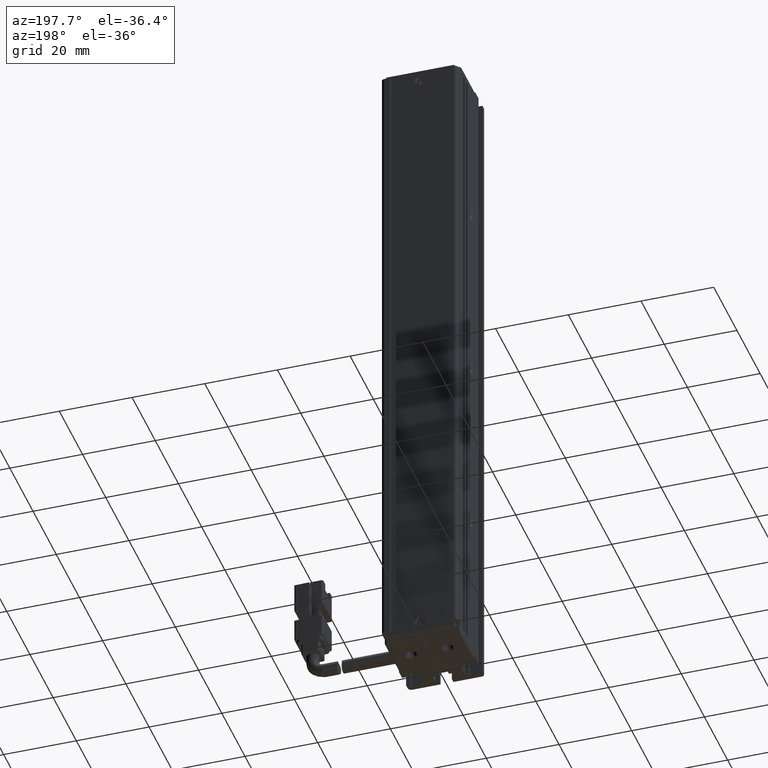
[diagram: clean part render]
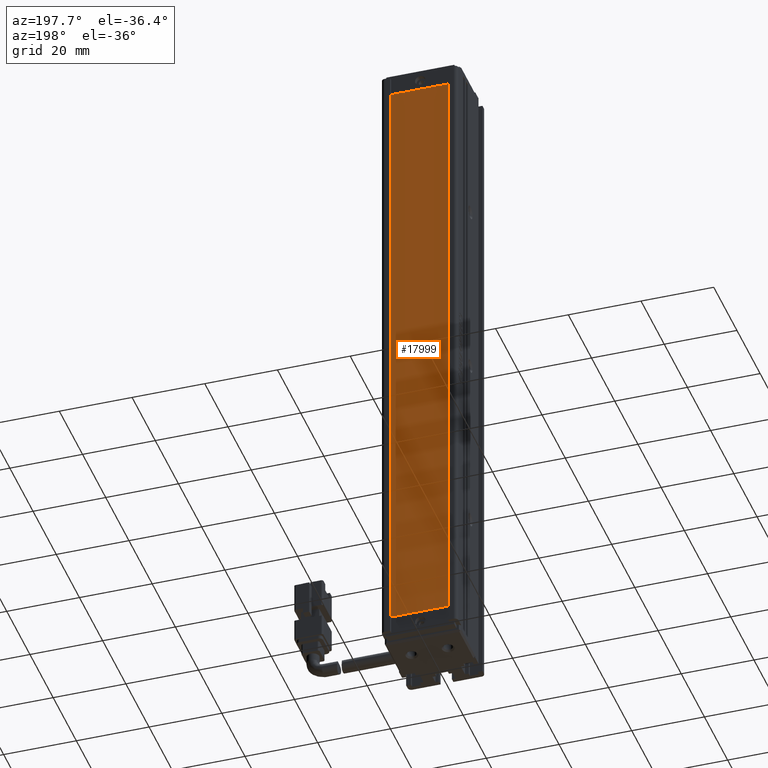
[diagram: same view with one face highlighted and labeled with its STEP entity id]
A machine part, auxiliary view. The second image highlights one B-rep face of the part: STEP entity #17999.
In plain terms, the highlighted planar face has unit normal (0, -1, 0).
Its self-contained STEP definition (entity closure, byte-faithful):
#948 = ORIENTED_EDGE ( 'NONE', *, *, #39056, .T. ) ;
#1206 = VERTEX_POINT ( 'NONE', #4228 ) ;
#3102 = VECTOR ( 'NONE', #47794, 1000.000000000000000 ) ;
#4228 = CARTESIAN_POINT ( 'NONE',  ( 48.92537974683541800, 34.29073232304836700, -30.00000000000001400 ) ) ;
#5283 = EDGE_CURVE ( 'NONE', #26441, #1206, #19535, .T. ) ;
#5423 = VECTOR ( 'NONE', #18644, 1000.000000000000000 ) ;
#5885 = DIRECTION ( 'NONE',  ( -0.0000000000000000000, -0.0000000000000000000, -1.000000000000000000 ) ) ;
#7853 = LINE ( 'NONE', #32298, #3102 ) ;
#8785 = VERTEX_POINT ( 'NONE', #46009 ) ;
#9257 = EDGE_CURVE ( 'NONE', #1206, #8785, #16828, .T. ) ;
#11118 = CARTESIAN_POINT ( 'NONE',  ( 48.92537974683541800, 34.29073232304836700, -30.00000000000001400 ) ) ;
#15707 = PLANE ( 'NONE',  #39116 ) ;
#16592 = ORIENTED_EDGE ( 'NONE', *, *, #9257, .T. ) ;
#16828 = LINE ( 'NONE', #35518, #22643 ) ;
#17228 = EDGE_CURVE ( 'NONE', #32704, #26441, #7853, .T. ) ;
#17999 = ADVANCED_FACE ( 'NONE', ( #39164 ), #15707, .F. ) ;
#18644 = DIRECTION ( 'NONE',  ( -1.000000000000000000, -0.0000000000000000000, -0.0000000000000000000 ) ) ;
#18778 = EDGE_LOOP ( 'NONE', ( #27605, #47811, #16592, #948 ) ) ;
#19535 = LINE ( 'NONE', #11118, #41136 ) ;
#22643 = VECTOR ( 'NONE', #5885, 1000.000000000000000 ) ;
#23862 = DIRECTION ( 'NONE',  ( 0.0000000000000000000, -0.0000000000000000000, -1.000000000000000000 ) ) ;
#26441 = VERTEX_POINT ( 'NONE', #27288 ) ;
#27288 = CARTESIAN_POINT ( 'NONE',  ( 32.92537974683541800, 34.29073232304836700, -30.00000000000001400 ) ) ;
#27605 = ORIENTED_EDGE ( 'NONE', *, *, #17228, .T. ) ;
#29497 = CARTESIAN_POINT ( 'NONE',  ( 32.92537974683542500, 34.29073232304836700, -200.0000000000000000 ) ) ;
#32298 = CARTESIAN_POINT ( 'NONE',  ( 32.92537974683541800, 34.29073232304836700, -30.00000000000001400 ) ) ;
#32704 = VERTEX_POINT ( 'NONE', #29497 ) ;
#35518 = CARTESIAN_POINT ( 'NONE',  ( 48.92537974683541800, 34.29073232304836700, -114.9999999999999700 ) ) ;
#36473 = LINE ( 'NONE', #41004, #5423 ) ;
#37485 = DIRECTION ( 'NONE',  ( 1.000000000000000000, -0.0000000000000000000, -0.0000000000000000000 ) ) ;
#39056 = EDGE_CURVE ( 'NONE', #8785, #32704, #36473, .T. ) ;
#39116 = AXIS2_PLACEMENT_3D ( 'NONE', #42484, #42323, #23862 ) ;
#39164 = FACE_OUTER_BOUND ( 'NONE', #18778, .T. ) ;
#41004 = CARTESIAN_POINT ( 'NONE',  ( 32.92537974683542500, 34.29073232304836700, -200.0000000000000000 ) ) ;
#41136 = VECTOR ( 'NONE', #37485, 1000.000000000000000 ) ;
#42323 = DIRECTION ( 'NONE',  ( 0.0000000000000000000, -1.000000000000000000, 0.0000000000000000000 ) ) ;
#42484 = CARTESIAN_POINT ( 'NONE',  ( 0.0000000000000000000, 34.29073232304836700, 0.0000000000000000000 ) ) ;
#46009 = CARTESIAN_POINT ( 'NONE',  ( 48.92537974683541800, 34.29073232304836700, -200.0000000000000000 ) ) ;
#47794 = DIRECTION ( 'NONE',  ( -4.081702296416017000E-017, -0.0000000000000000000, 1.000000000000000000 ) ) ;
#47811 = ORIENTED_EDGE ( 'NONE', *, *, #5283, .T. ) ;